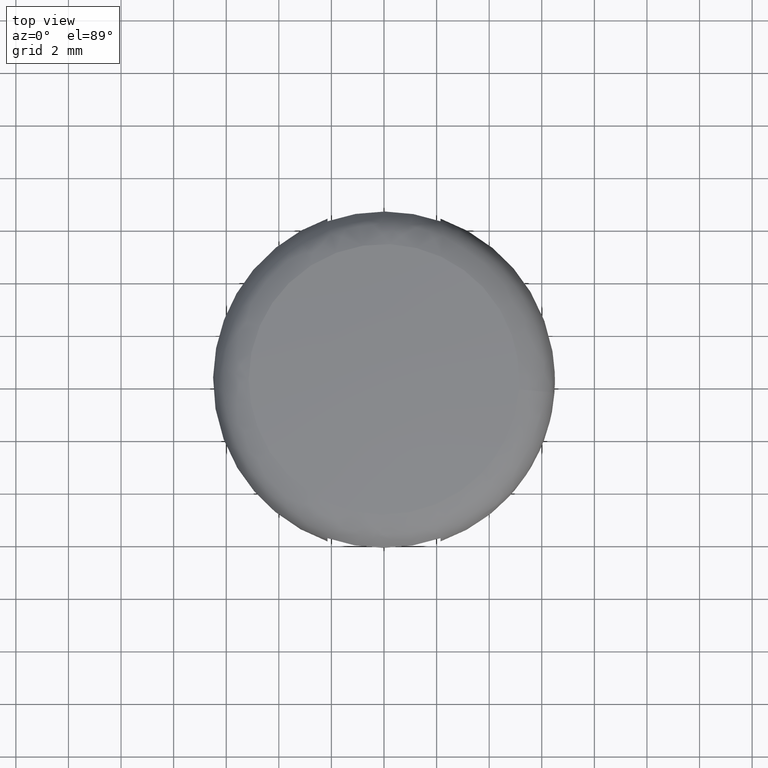
[diagram: clean part render]
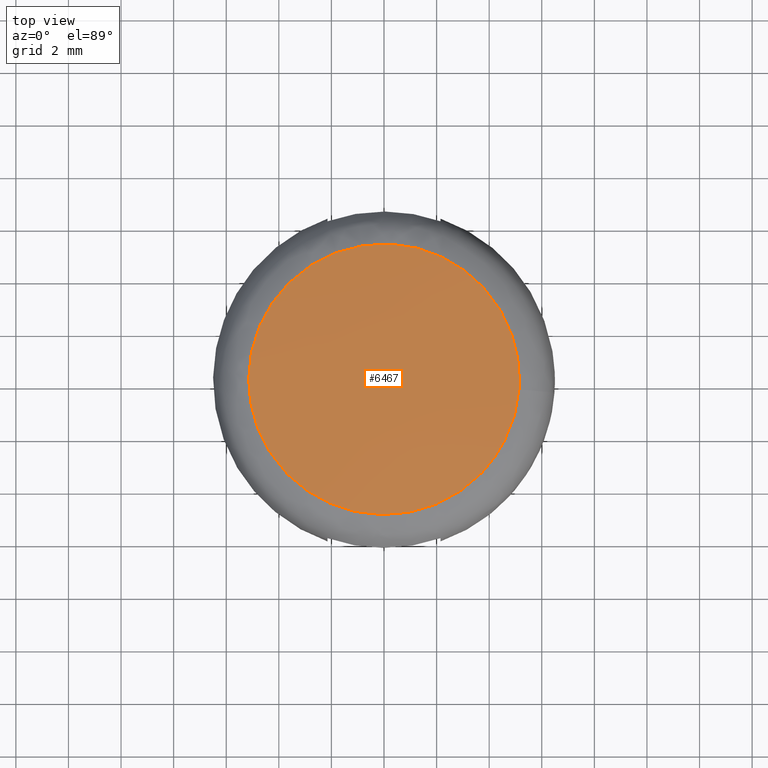
[diagram: same view with one face highlighted and labeled with its STEP entity id]
A machine part, top view. The second image highlights one B-rep face of the part: STEP entity #6467.
In plain terms, the highlighted face is a freeform B-spline surface patch.
Its self-contained STEP definition (entity closure, byte-faithful):
#744=CARTESIAN_POINT('',(5.131011887636867,-0.387603956489561,-0.250378188423155));
#745=VERTEX_POINT('',#744);
#759=CARTESIAN_POINT('',(5.145631136834160,0.0,-0.250378188216518));
#760=VERTEX_POINT('',#759);
#761=CARTESIAN_POINT('',(5.145631136834160,0.0,-0.250378188216518));
#762=CARTESIAN_POINT('',(5.145631136834161,-0.194077675366102,-0.250378188216518));
#763=CARTESIAN_POINT('',(5.131011887636867,-0.387603956489561,-0.250378188423155));
#771=(BOUNDED_CURVE()B_SPLINE_CURVE(2,(#761,#762,#763),.UNSPECIFIED.,.F.,.U.)B_SPLINE_CURVE_WITH_KNOTS((3,3),(0.500000000000000,0.513129840762218),.UNSPECIFIED.)CURVE()GEOMETRIC_REPRESENTATION_ITEM()RATIONAL_B_SPLINE_CURVE((1.0,0.984617434706583,0.970850634475702))REPRESENTATION_ITEM(''));
#772=EDGE_CURVE('',#760,#745,#771,.T.);
#774=CARTESIAN_POINT('',(-5.145631136834160,0.0,-0.250378188216518));
#775=VERTEX_POINT('',#774);
#776=CARTESIAN_POINT('',(-5.145631136834160,0.0,-0.250378188216518));
#777=CARTESIAN_POINT('',(-5.145631136834159,5.145631136834159,-0.250378188216518));
#778=CARTESIAN_POINT('',(0.0,5.145631136834160,-0.250378188216518));
#779=CARTESIAN_POINT('',(5.145631136834159,5.145631136834159,-0.250378188216518));
#780=CARTESIAN_POINT('',(5.145631136834160,0.0,-0.250378188216518));
#788=(BOUNDED_CURVE()B_SPLINE_CURVE(2,(#776,#777,#778,#779,#780),.UNSPECIFIED.,.F.,.U.)B_SPLINE_CURVE_WITH_KNOTS((3,2,3),(0.0,0.250000000000000,0.500000000000000),.UNSPECIFIED.)CURVE()GEOMETRIC_REPRESENTATION_ITEM()RATIONAL_B_SPLINE_CURVE((1.0,0.707106781186548,1.0,0.707106781186548,1.0))REPRESENTATION_ITEM(''));
#789=EDGE_CURVE('',#775,#760,#788,.T.);
#791=CARTESIAN_POINT('',(3.724534737638783,-3.550402907652273,-0.250378188426818));
#792=VERTEX_POINT('',#791);
#793=CARTESIAN_POINT('',(3.724534737638784,-3.550402907652273,-0.250378188426818));
#794=CARTESIAN_POINT('',(2.203887635829804,-5.145631136834160,-0.250378188216518));
#795=CARTESIAN_POINT('',(0.0,-5.145631136834160,-0.250378188216518));
#796=CARTESIAN_POINT('',(-5.145631136834159,-5.145631136834159,-0.250378188216518));
#797=CARTESIAN_POINT('',(-5.145631136834160,0.0,-0.250378188216518));
#805=(BOUNDED_CURVE()B_SPLINE_CURVE(2,(#793,#794,#795,#796,#797),.UNSPECIFIED.,.F.,.U.)B_SPLINE_CURVE_WITH_KNOTS((3,2,3),(0.621388876010881,0.750000000000000,1.0),.UNSPECIFIED.)CURVE()GEOMETRIC_REPRESENTATION_ITEM()RATIONAL_B_SPLINE_CURVE((0.853675611104455,0.849322695678444,1.0,0.707106781186548,1.0))REPRESENTATION_ITEM(''));
#806=EDGE_CURVE('',#792,#775,#805,.T.);
#855=CARTESIAN_POINT('',(5.131011887636867,-0.387603956489561,-0.250378188423155));
#856=CARTESIAN_POINT('',(4.992577360848824,-2.220168302491487,-0.250378188216518));
#857=CARTESIAN_POINT('',(3.724534737638783,-3.550402907652273,-0.250378188426818));
#865=(BOUNDED_CURVE()B_SPLINE_CURVE(2,(#855,#856,#857),.UNSPECIFIED.,.F.,.U.)B_SPLINE_CURVE_WITH_KNOTS((3,3),(0.513129840762218,0.621388876010882),.UNSPECIFIED.)CURVE()GEOMETRIC_REPRESENTATION_ITEM()RATIONAL_B_SPLINE_CURVE((0.970850634475702,0.857339698703741,0.853675611104454))REPRESENTATION_ITEM(''));
#866=EDGE_CURVE('',#745,#792,#865,.T.);
#6437=CARTESIAN_POINT('',(-5.640768691599764,-5.640084128982079,-0.603710249809956));
#6438=CARTESIAN_POINT('',(-2.828439842807328,-5.656193167769794,-0.302680534500879));
#6439=CARTESIAN_POINT('',(2.828440687645535,-5.656193167769794,-0.302680534500872));
#6440=CARTESIAN_POINT('',(5.640770366866813,-5.640084119386138,-0.603710429129385));
#6441=CARTESIAN_POINT('',(-5.656875764232064,-2.828094623431556,-0.302753804510414));
#6442=CARTESIAN_POINT('',(-2.836539515417321,-2.836195273520165,-1.753065E-014));
#6443=CARTESIAN_POINT('',(2.836540362674851,-2.836195273520165,-1.089106E-014));
#6444=CARTESIAN_POINT('',(5.656877444255309,-2.828094618606144,-0.302753984855388));
#6445=CARTESIAN_POINT('',(-5.656875764232064,2.828422396870031,-0.302753804510414));
#6446=CARTESIAN_POINT('',(-2.836539515417321,2.836523985816170,-1.753065E-014));
#6447=CARTESIAN_POINT('',(2.836540362674851,2.836523985816170,-1.089106E-014));
#6448=CARTESIAN_POINT('',(5.656877444255309,2.828422392044059,-0.302753984855388));
#6449=CARTESIAN_POINT('',(-5.640764968428933,5.640734086140978,-0.603779816284554));
#6450=CARTESIAN_POINT('',(-2.828437970572718,5.656844970652475,-0.302750498930195));
#6451=CARTESIAN_POINT('',(2.828438815410366,5.656844970652475,-0.302750498930189));
#6452=CARTESIAN_POINT('',(5.640766643694878,5.640734076543932,-0.603779995603745));
#6460=(BOUNDED_SURFACE()B_SPLINE_SURFACE(2,2,((#6437,#6441,#6445,#6449),(#6438,#6442,#6446,#6450),(#6439,#6443,#6447,#6451),(#6440,#6444,#6448,#6452)),.UNSPECIFIED.,.F.,.F.,.U.)B_SPLINE_SURFACE_WITH_KNOTS((3,1,3),(3,1,3),(18.135413366127018,23.663420805267862,29.191429895591739),(18.136084244060520,23.663420805267862,29.191397979450230),.UNSPECIFIED.)GEOMETRIC_REPRESENTATION_ITEM()RATIONAL_B_SPLINE_SURFACE(((1.005728002866523,1.002864349029022,1.002864349029022,1.005728666694423),(1.002863653837500,1.0,1.0,1.002864317665401),(1.002863653837500,1.0,1.0,1.002864317665401),(1.005728004577651,1.002864350740151,1.002864350740151,1.005728668405552)))REPRESENTATION_ITEM('')SURFACE());
#6461=ORIENTED_EDGE('',*,*,#806,.T.);
#6462=ORIENTED_EDGE('',*,*,#789,.T.);
#6463=ORIENTED_EDGE('',*,*,#772,.T.);
#6464=ORIENTED_EDGE('',*,*,#866,.T.);
#6465=EDGE_LOOP('',(#6461,#6462,#6463,#6464));
#6466=FACE_OUTER_BOUND('',#6465,.T.);
#6467=ADVANCED_FACE('',(#6466),#6460,.F.);